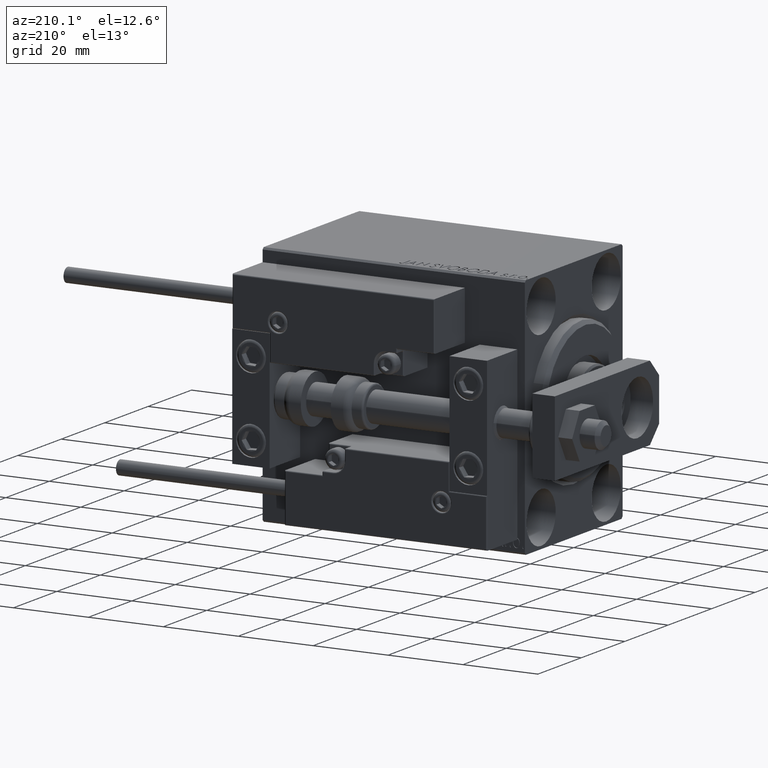
[diagram: clean part render]
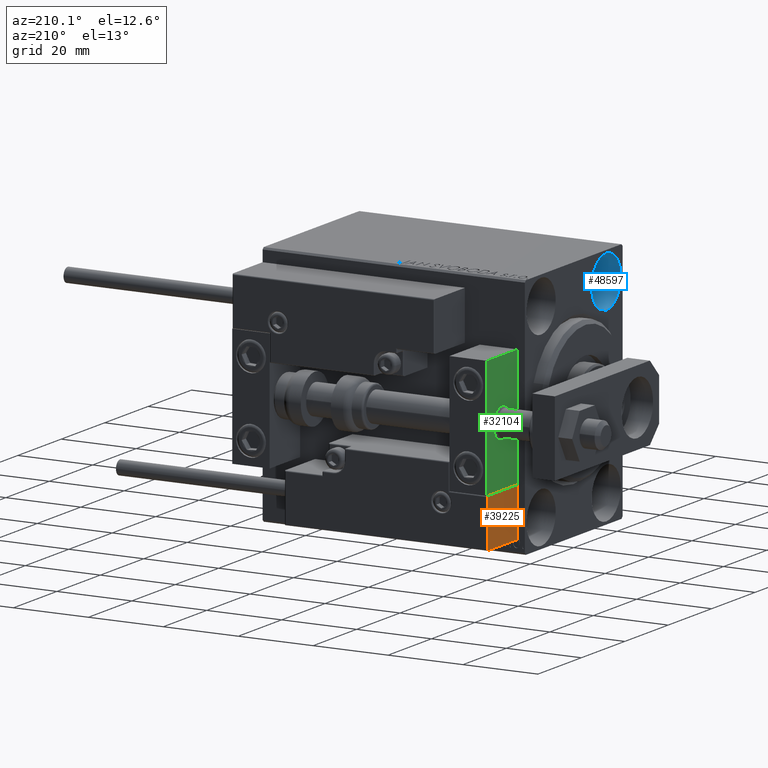
[diagram: same view with three faces highlighted in distinct colors, each labeled with its STEP entity id]
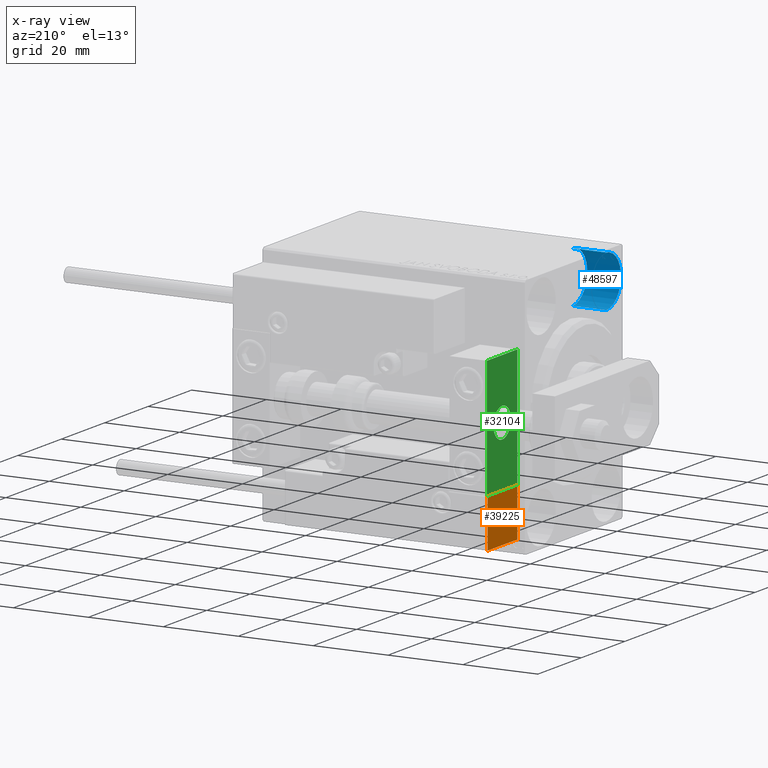
[diagram: x-ray of the same camera — body ghosted, the three highlighted faces saturated]
A machine part, auxiliary view with three faces highlighted in distinct colors.
The next image is the same camera in x-ray (body ghosted, the three faces saturated) — at least one of them is partly hidden behind the body in this view.
Their STEP definitions:

[orange] entity #39225 — the highlighted planar face has unit normal (1, 0, -0).
#125 = CARTESIAN_POINT ( 'NONE',  ( -26.99999999999994671, 7.000000000000005329, 0.000000000000000000 ) ) ;
#3411 = VECTOR ( 'NONE', #36360, 1000.000000000000000 ) ;
#4222 = EDGE_LOOP ( 'NONE', ( #34437, #6247, #24130, #11441 ) ) ;
#6247 = ORIENTED_EDGE ( 'NONE', *, *, #10687, .T. ) ;
#6774 = VECTOR ( 'NONE', #26447, 1000.000000000000000 ) ;
#7121 = EDGE_CURVE ( 'NONE', #33289, #10995, #9629, .T. ) ;
#7161 = VERTEX_POINT ( 'NONE', #47288 ) ;
#9629 = LINE ( 'NONE', #32809, #39169 ) ;
#9810 = CARTESIAN_POINT ( 'NONE',  ( -26.99999999999993605, 20.00000000000002132, 14.00000000000000000 ) ) ;
#10687 = EDGE_CURVE ( 'NONE', #33289, #24137, #38640, .T. ) ;
#10995 = VERTEX_POINT ( 'NONE', #125 ) ;
#11441 = ORIENTED_EDGE ( 'NONE', *, *, #38326, .T. ) ;
#13396 = LINE ( 'NONE', #9810, #42419 ) ;
#15703 = PLANE ( 'NONE',  #17219 ) ;
#17219 = AXIS2_PLACEMENT_3D ( 'NONE', #42435, #38136, #49827 ) ;
#20844 = CARTESIAN_POINT ( 'NONE',  ( -26.99999999999993605, 20.00000000000002132, 0.000000000000000000 ) ) ;
#23890 = CARTESIAN_POINT ( 'NONE',  ( -26.99999999999994671, 7.000000000000005329, 13.70000000000000107 ) ) ;
#24130 = ORIENTED_EDGE ( 'NONE', *, *, #42892, .T. ) ;
#24137 = VERTEX_POINT ( 'NONE', #26746 ) ;
#26447 = DIRECTION ( 'NONE',  ( 8.006416042969869188E-16, 1.000000000000000000, -0.000000000000000000 ) ) ;
#26746 = CARTESIAN_POINT ( 'NONE',  ( -26.99999999999993605, 20.00000000000002132, 13.70000000000000107 ) ) ;
#28995 = DIRECTION ( 'NONE',  ( -0.000000000000000000, -0.000000000000000000, -1.000000000000000000 ) ) ;
#32809 = CARTESIAN_POINT ( 'NONE',  ( -26.99999999999994671, 7.000000000000005329, 14.00000000000000000 ) ) ;
#33289 = VERTEX_POINT ( 'NONE', #23890 ) ;
#34437 = ORIENTED_EDGE ( 'NONE', *, *, #7121, .F. ) ;
#36360 = DIRECTION ( 'NONE',  ( -8.006416042969869188E-16, -1.000000000000000000, 0.000000000000000000 ) ) ;
#38136 = DIRECTION ( 'NONE',  ( 1.000000000000000000, -8.006416042969869188E-16, 0.000000000000000000 ) ) ;
#38326 = EDGE_CURVE ( 'NONE', #7161, #10995, #41203, .T. ) ;
#38640 = LINE ( 'NONE', #41719, #6774 ) ;
#39169 = VECTOR ( 'NONE', #28995, 1000.000000000000000 ) ;
#39225 = ADVANCED_FACE ( 'NONE', ( #46227 ), #15703, .F. ) ;
#41203 = LINE ( 'NONE', #20844, #3411 ) ;
#41719 = CARTESIAN_POINT ( 'NONE',  ( -26.99999999999993605, 20.00000000000002132, 13.70000000000000107 ) ) ;
#42419 = VECTOR ( 'NONE', #44419, 1000.000000000000000 ) ;
#42435 = CARTESIAN_POINT ( 'NONE',  ( -26.99999999999993605, 20.00000000000002132, 14.00000000000000000 ) ) ;
#42892 = EDGE_CURVE ( 'NONE', #24137, #7161, #13396, .T. ) ;
#44419 = DIRECTION ( 'NONE',  ( -0.000000000000000000, -0.000000000000000000, -1.000000000000000000 ) ) ;
#46227 = FACE_OUTER_BOUND ( 'NONE', #4222, .T. ) ;
#47288 = CARTESIAN_POINT ( 'NONE',  ( -26.99999999999993605, 20.00000000000002132, 0.000000000000000000 ) ) ;
#49827 = DIRECTION ( 'NONE',  ( 8.006416042969869188E-16, 1.000000000000000000, 0.000000000000000000 ) ) ;

[blue] entity #48597 — the highlighted cylindrical surface (edge-blend (fillet) strip) has radius 6.75 mm, axis along (-1, -0, -0).
#181 = CIRCLE ( 'NONE', #40002, 6.749999999999999112 ) ;
#1350 = LINE ( 'NONE', #6194, #31256 ) ;
#1880 = DIRECTION ( 'NONE',  ( -1.000000000000000000, -0.000000000000000000, -0.000000000000000000 ) ) ;
#3416 = EDGE_LOOP ( 'NONE', ( #38846, #35425, #30594, #45355 ) ) ;
#4470 = VERTEX_POINT ( 'NONE', #42195 ) ;
#6194 = CARTESIAN_POINT ( 'NONE',  ( 9.000000000000000000, -14.99999999999999645, 18.25000000000000355 ) ) ;
#7731 = DIRECTION ( 'NONE',  ( 0.000000000000000000, 0.000000000000000000, 1.000000000000000000 ) ) ;
#9482 = CIRCLE ( 'NONE', #34708, 6.749999999999999112 ) ;
#10327 = VERTEX_POINT ( 'NONE', #48644 ) ;
#11806 = DIRECTION ( 'NONE',  ( -1.000000000000000000, 0.000000000000000000, 0.000000000000000000 ) ) ;
#17361 = EDGE_CURVE ( 'NONE', #10327, #4470, #1350, .T. ) ;
#21735 = DIRECTION ( 'NONE',  ( -1.000000000000000000, -0.000000000000000000, -0.000000000000000000 ) ) ;
#23340 = EDGE_CURVE ( 'NONE', #10327, #43285, #9482, .T. ) ;
#26594 = CARTESIAN_POINT ( 'NONE',  ( 0.000000000000000000, -14.99999999999999645, 25.00000000000000000 ) ) ;
#28045 = CARTESIAN_POINT ( 'NONE',  ( 9.000000000000000000, -14.99999999999999645, 31.75000000000000000 ) ) ;
#29406 = CARTESIAN_POINT ( 'NONE',  ( 0.000000000000000000, -14.99999999999999645, 31.75000000000000000 ) ) ;
#30587 = CARTESIAN_POINT ( 'NONE',  ( 9.000000000000000000, -14.99999999999999645, 25.00000000000000000 ) ) ;
#30594 = ORIENTED_EDGE ( 'NONE', *, *, #36829, .T. ) ;
#31256 = VECTOR ( 'NONE', #21735, 1000.000000000000000 ) ;
#31924 = CARTESIAN_POINT ( 'NONE',  ( 9.000000000000000000, -14.99999999999999645, 25.00000000000000000 ) ) ;
#34654 = FACE_OUTER_BOUND ( 'NONE', #3416, .T. ) ;
#34708 = AXIS2_PLACEMENT_3D ( 'NONE', #31924, #35745, #35996 ) ;
#35425 = ORIENTED_EDGE ( 'NONE', *, *, #17361, .T. ) ;
#35745 = DIRECTION ( 'NONE',  ( -1.000000000000000000, 0.000000000000000000, 0.000000000000000000 ) ) ;
#35996 = DIRECTION ( 'NONE',  ( 0.000000000000000000, 0.000000000000000000, 1.000000000000000000 ) ) ;
#36829 = EDGE_CURVE ( 'NONE', #4470, #49355, #181, .T. ) ;
#37522 = CARTESIAN_POINT ( 'NONE',  ( 9.000000000000000000, -14.99999999999999645, 31.75000000000000000 ) ) ;
#38846 = ORIENTED_EDGE ( 'NONE', *, *, #23340, .F. ) ;
#39354 = AXIS2_PLACEMENT_3D ( 'NONE', #30587, #45330, #46321 ) ;
#40002 = AXIS2_PLACEMENT_3D ( 'NONE', #26594, #11806, #7731 ) ;
#40663 = EDGE_CURVE ( 'NONE', #43285, #49355, #44617, .T. ) ;
#41562 = VECTOR ( 'NONE', #1880, 1000.000000000000000 ) ;
#42195 = CARTESIAN_POINT ( 'NONE',  ( 0.000000000000000000, -14.99999999999999645, 18.25000000000000355 ) ) ;
#43285 = VERTEX_POINT ( 'NONE', #28045 ) ;
#44617 = LINE ( 'NONE', #37522, #41562 ) ;
#45330 = DIRECTION ( 'NONE',  ( -1.000000000000000000, -0.000000000000000000, -0.000000000000000000 ) ) ;
#45355 = ORIENTED_EDGE ( 'NONE', *, *, #40663, .F. ) ;
#46080 = CYLINDRICAL_SURFACE ( 'NONE', #39354, 6.749999999999999112 ) ;
#46321 = DIRECTION ( 'NONE',  ( 0.000000000000000000, 0.000000000000000000, 1.000000000000000000 ) ) ;
#48597 = ADVANCED_FACE ( 'NONE', ( #34654 ), #46080, .F. ) ;
#48644 = CARTESIAN_POINT ( 'NONE',  ( 9.000000000000000000, -14.99999999999999645, 18.25000000000000355 ) ) ;
#49355 = VERTEX_POINT ( 'NONE', #29406 ) ;

[green] entity #32104 — the highlighted planar face has unit normal (1, 0, -0).
#53 = VECTOR ( 'NONE', #1938, 1000.000000000000000 ) ;
#800 = VERTEX_POINT ( 'NONE', #41214 ) ;
#1938 = DIRECTION ( 'NONE',  ( 0.000000000000000000, 0.000000000000000000, -1.000000000000000000 ) ) ;
#2490 = DIRECTION ( 'NONE',  ( -1.000000000000000000, 0.000000000000000000, 0.000000000000000000 ) ) ;
#2729 = VERTEX_POINT ( 'NONE', #39901 ) ;
#4738 = CARTESIAN_POINT ( 'NONE',  ( 10.00000000000000000, -7.000000000000000000, 15.99999999999999289 ) ) ;
#4849 = AXIS2_PLACEMENT_3D ( 'NONE', #40927, #2490, #37116 ) ;
#5110 = LINE ( 'NONE', #32101, #7476 ) ;
#5502 = LINE ( 'NONE', #25629, #53 ) ;
#6424 = DIRECTION ( 'NONE',  ( -0.000000000000000000, 0.000000000000000000, 1.000000000000000000 ) ) ;
#7476 = VECTOR ( 'NONE', #47601, 1000.000000000000000 ) ;
#8799 = LINE ( 'NONE', #24591, #17417 ) ;
#9033 = CARTESIAN_POINT ( 'NONE',  ( 10.00000000000000000, 0.000000000000000000, 0.000000000000000000 ) ) ;
#10246 = CARTESIAN_POINT ( 'NONE',  ( 10.00000000000000000, 0.000000000000000000, 0.000000000000000000 ) ) ;
#12186 = VERTEX_POINT ( 'NONE', #35397 ) ;
#13127 = DIRECTION ( 'NONE',  ( 0.000000000000000000, 0.000000000000000000, 1.000000000000000000 ) ) ;
#13476 = DIRECTION ( 'NONE',  ( 0.000000000000000000, -1.000000000000000000, 0.000000000000000000 ) ) ;
#14173 = EDGE_LOOP ( 'NONE', ( #27752, #49670, #50255, #42015 ) ) ;
#15757 = VERTEX_POINT ( 'NONE', #49874 ) ;
#16780 = LINE ( 'NONE', #39679, #20696 ) ;
#17417 = VECTOR ( 'NONE', #40105, 1000.000000000000000 ) ;
#17776 = EDGE_CURVE ( 'NONE', #800, #15757, #8799, .T. ) ;
#18023 = EDGE_LOOP ( 'NONE', ( #22680, #22036 ) ) ;
#20696 = VECTOR ( 'NONE', #13476, 1000.000000000000000 ) ;
#21971 = PLANE ( 'NONE',  #38165 ) ;
#22036 = ORIENTED_EDGE ( 'NONE', *, *, #33547, .T. ) ;
#22475 = FACE_BOUND ( 'NONE', #18023, .T. ) ;
#22680 = ORIENTED_EDGE ( 'NONE', *, *, #37979, .T. ) ;
#22905 = AXIS2_PLACEMENT_3D ( 'NONE', #9033, #47972, #13127 ) ;
#24591 = CARTESIAN_POINT ( 'NONE',  ( 10.00000000000000000, 7.000000000000000000, -16.00000000000000711 ) ) ;
#25629 = CARTESIAN_POINT ( 'NONE',  ( 10.00000000000000000, -7.000000000000000000, 15.99999999999999289 ) ) ;
#25779 = DIRECTION ( 'NONE',  ( -1.000000000000000000, 0.000000000000000000, -0.000000000000000000 ) ) ;
#27752 = ORIENTED_EDGE ( 'NONE', *, *, #35771, .T. ) ;
#32101 = CARTESIAN_POINT ( 'NONE',  ( 10.00000000000000000, 7.000000000000000000, 15.99999999999999289 ) ) ;
#32104 = ADVANCED_FACE ( 'NONE', ( #22475, #41303 ), #21971, .F. ) ;
#33547 = EDGE_CURVE ( 'NONE', #38542, #12186, #43035, .T. ) ;
#35397 = CARTESIAN_POINT ( 'NONE',  ( 10.00000000000000000, 0.000000000000000000, 4.000000000000000000 ) ) ;
#35771 = EDGE_CURVE ( 'NONE', #39473, #15757, #5502, .T. ) ;
#37116 = DIRECTION ( 'NONE',  ( 0.000000000000000000, 0.000000000000000000, 1.000000000000000000 ) ) ;
#37979 = EDGE_CURVE ( 'NONE', #12186, #38542, #44815, .T. ) ;
#38165 = AXIS2_PLACEMENT_3D ( 'NONE', #10246, #25779, #6424 ) ;
#38542 = VERTEX_POINT ( 'NONE', #50306 ) ;
#38893 = EDGE_CURVE ( 'NONE', #2729, #800, #5110, .T. ) ;
#39473 = VERTEX_POINT ( 'NONE', #4738 ) ;
#39679 = CARTESIAN_POINT ( 'NONE',  ( 10.00000000000000000, 7.000000000000000000, 15.99999999999999289 ) ) ;
#39901 = CARTESIAN_POINT ( 'NONE',  ( 10.00000000000000000, 7.000000000000000000, 15.99999999999999289 ) ) ;
#40105 = DIRECTION ( 'NONE',  ( 0.000000000000000000, -1.000000000000000000, 0.000000000000000000 ) ) ;
#40927 = CARTESIAN_POINT ( 'NONE',  ( 10.00000000000000000, 0.000000000000000000, 0.000000000000000000 ) ) ;
#41214 = CARTESIAN_POINT ( 'NONE',  ( 10.00000000000000000, 7.000000000000000000, -16.00000000000000711 ) ) ;
#41303 = FACE_OUTER_BOUND ( 'NONE', #14173, .T. ) ;
#42015 = ORIENTED_EDGE ( 'NONE', *, *, #50340, .T. ) ;
#43035 = CIRCLE ( 'NONE', #4849, 4.000000000000000000 ) ;
#44815 = CIRCLE ( 'NONE', #22905, 4.000000000000000000 ) ;
#47601 = DIRECTION ( 'NONE',  ( 0.000000000000000000, 0.000000000000000000, -1.000000000000000000 ) ) ;
#47972 = DIRECTION ( 'NONE',  ( -1.000000000000000000, 0.000000000000000000, 0.000000000000000000 ) ) ;
#49670 = ORIENTED_EDGE ( 'NONE', *, *, #17776, .F. ) ;
#49874 = CARTESIAN_POINT ( 'NONE',  ( 10.00000000000000000, -7.000000000000000000, -16.00000000000000711 ) ) ;
#50255 = ORIENTED_EDGE ( 'NONE', *, *, #38893, .F. ) ;
#50306 = CARTESIAN_POINT ( 'NONE',  ( 10.00000000000000000, 4.898587196589412829E-16, -4.000000000000000000 ) ) ;
#50340 = EDGE_CURVE ( 'NONE', #2729, #39473, #16780, .T. ) ;